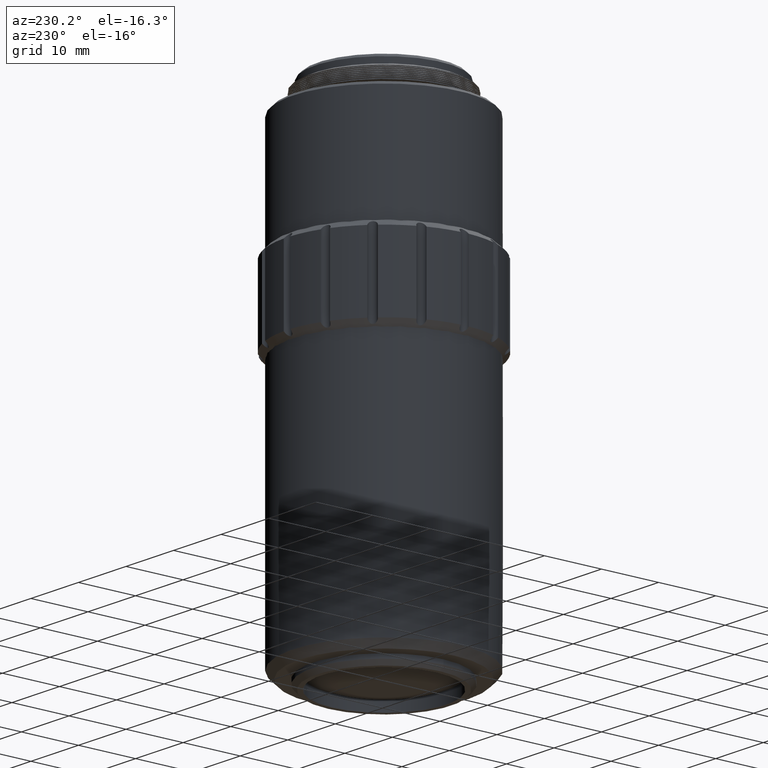
[diagram: clean part render]
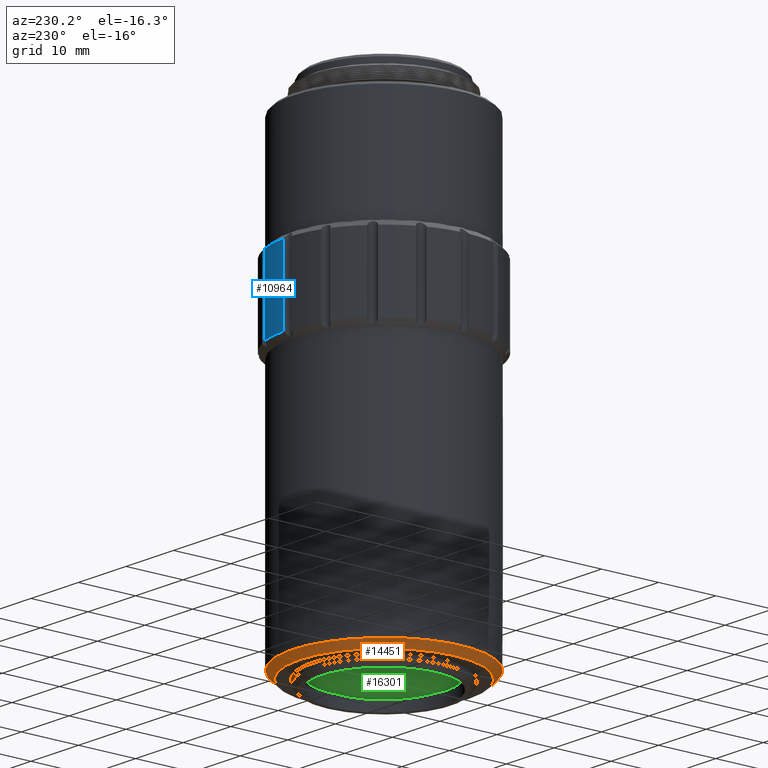
[diagram: same view with three faces highlighted in distinct colors, each labeled with its STEP entity id]
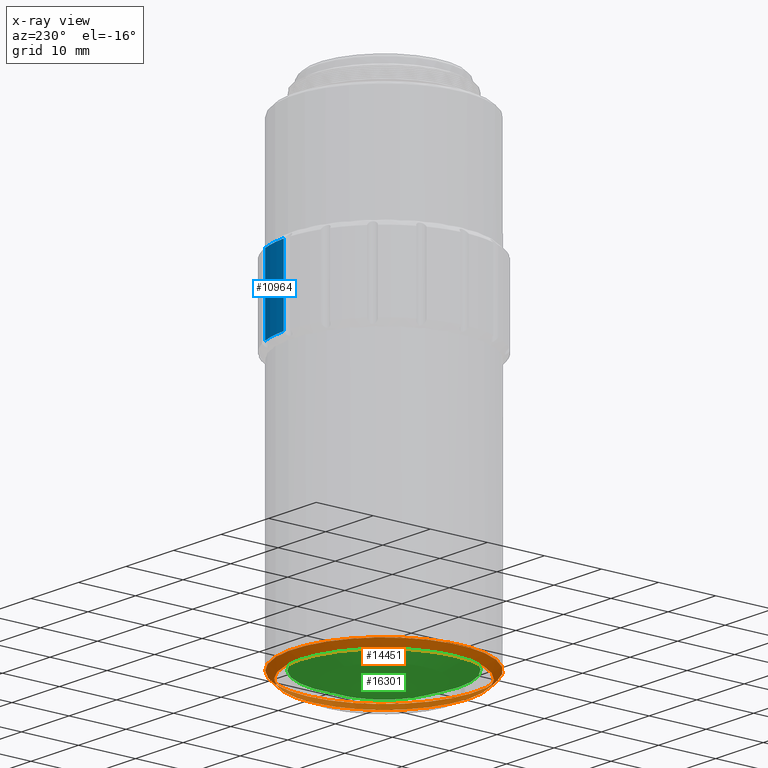
[diagram: x-ray of the same camera — body ghosted, the three highlighted faces saturated]
A machine part, auxiliary view with three faces highlighted in distinct colors.
The next image is the same camera in x-ray (body ghosted, the three faces saturated) — at least one of them is partly hidden behind the body in this view.
Their STEP definitions:

[orange] entity #14451 — the highlighted conical surface has half-angle 45 deg.
#322 = DIRECTION ( 'NONE',  ( -0.000000000000000000, -0.000000000000000000, -1.000000000000000000 ) ) ;
#342 = CARTESIAN_POINT ( 'NONE',  ( -106.6630341068842824, 22.01530283243863906, -51.10774392209297901 ) ) ;
#766 = DIRECTION ( 'NONE',  ( 1.000000000000000000, 0.000000000000000000, 0.000000000000000000 ) ) ;
#2072 = CIRCLE ( 'NONE', #14195, 14.79999999999989591 ) ;
#2402 = VERTEX_POINT ( 'NONE', #19298 ) ;
#3448 = FACE_OUTER_BOUND ( 'NONE', #30187, .T. ) ;
#3998 = CIRCLE ( 'NONE', #12575, 16.00000000000000000 ) ;
#4127 = DIRECTION ( 'NONE',  ( -0.000000000000000000, -0.000000000000000000, 1.000000000000000000 ) ) ;
#4784 = VERTEX_POINT ( 'NONE', #342 ) ;
#5173 = EDGE_CURVE ( 'NONE', #4784, #4784, #3998, .T. ) ;
#6025 = CONICAL_SURFACE ( 'NONE', #14099, 16.00000000000000000, 0.7853981633974583820 ) ;
#6353 = DIRECTION ( 'NONE',  ( 1.000000000000000000, 0.000000000000000000, 0.000000000000000000 ) ) ;
#6511 = CARTESIAN_POINT ( 'NONE',  ( -122.6630341068842824, 22.01530283243863906, -51.10774392209297901 ) ) ;
#7210 = EDGE_CURVE ( 'NONE', #2402, #2402, #2072, .T. ) ;
#12575 = AXIS2_PLACEMENT_3D ( 'NONE', #6511, #4127, #6353 ) ;
#13094 = DIRECTION ( 'NONE',  ( -0.000000000000000000, -0.000000000000000000, 1.000000000000000000 ) ) ;
#14099 = AXIS2_PLACEMENT_3D ( 'NONE', #17974, #13094, #766 ) ;
#14195 = AXIS2_PLACEMENT_3D ( 'NONE', #17530, #322, #16917 ) ;
#14451 = ADVANCED_FACE ( 'NONE', ( #25079, #3448 ), #6025, .T. ) ;
#16917 = DIRECTION ( 'NONE',  ( 1.000000000000000000, 0.000000000000000000, 0.000000000000000000 ) ) ;
#17530 = CARTESIAN_POINT ( 'NONE',  ( -122.6630341068842824, 22.01530283243863906, -52.30774392209306001 ) ) ;
#17974 = CARTESIAN_POINT ( 'NONE',  ( -122.6630341068842824, 22.01530283243863906, -51.10774392209297901 ) ) ;
#19298 = CARTESIAN_POINT ( 'NONE',  ( -107.8630341068843848, 22.01530283243863906, -52.30774392209306001 ) ) ;
#23833 = ORIENTED_EDGE ( 'NONE', *, *, #5173, .F. ) ;
#25079 = FACE_BOUND ( 'NONE', #31245, .T. ) ;
#30187 = EDGE_LOOP ( 'NONE', ( #23833 ) ) ;
#30969 = ORIENTED_EDGE ( 'NONE', *, *, #7210, .F. ) ;
#31245 = EDGE_LOOP ( 'NONE', ( #30969 ) ) ;

[blue] entity #10964 — the highlighted cylindrical surface (partial cylindrical patch) has radius 17 mm, axis along (-0, -0, -1).
#153 = CIRCLE ( 'NONE', #15288, 17.00000000000000000 ) ;
#1472 = VECTOR ( 'NONE', #22965, 1000.000000000000000 ) ;
#3044 = CARTESIAN_POINT ( 'NONE',  ( -122.6630341068842540, 22.01530283243863195, -8.750073880203553145 ) ) ;
#3490 = CIRCLE ( 'NONE', #25175, 16.99999999999998579 ) ;
#4993 = CARTESIAN_POINT ( 'NONE',  ( -121.9550761942215331, 39.00055512947261604, 6.500000000000000000 ) ) ;
#5520 = EDGE_CURVE ( 'NONE', #15359, #29565, #10666, .T. ) ;
#5587 = CARTESIAN_POINT ( 'NONE',  ( -122.6630341068842540, 22.01530283243863195, -6.499999999999999112 ) ) ;
#6074 = EDGE_LOOP ( 'NONE', ( #29759, #22909, #13908, #25174 ) ) ;
#8325 = DIRECTION ( 'NONE',  ( -0.000000000000000000, -0.000000000000000000, -1.000000000000000000 ) ) ;
#9096 = CARTESIAN_POINT ( 'NONE',  ( -121.9550761942215331, 39.00055512947261604, -6.499999999999999112 ) ) ;
#9699 = DIRECTION ( 'NONE',  ( 1.000000000000000000, 0.000000000000000000, 0.000000000000000000 ) ) ;
#9805 = EDGE_CURVE ( 'NONE', #29332, #23534, #19351, .T. ) ;
#10599 = VECTOR ( 'NONE', #16987, 1000.000000000000000 ) ;
#10666 = LINE ( 'NONE', #25181, #1472 ) ;
#10964 = ADVANCED_FACE ( 'NONE', ( #19779 ), #29434, .T. ) ;
#12952 = EDGE_CURVE ( 'NONE', #23534, #15359, #3490, .T. ) ;
#13908 = ORIENTED_EDGE ( 'NONE', *, *, #16845, .T. ) ;
#14747 = DIRECTION ( 'NONE',  ( 0.000000000000000000, 0.000000000000000000, 1.000000000000000000 ) ) ;
#15288 = AXIS2_PLACEMENT_3D ( 'NONE', #5587, #14747, #9699 ) ;
#15359 = VERTEX_POINT ( 'NONE', #28726 ) ;
#16845 = EDGE_CURVE ( 'NONE', #29565, #29332, #153, .T. ) ;
#16957 = DIRECTION ( 'NONE',  ( -1.000000000000000000, 0.000000000000000000, 0.000000000000000000 ) ) ;
#16987 = DIRECTION ( 'NONE',  ( -0.000000000000000000, -0.000000000000000000, 1.000000000000000000 ) ) ;
#17946 = DIRECTION ( 'NONE',  ( -1.000000000000000000, 0.000000000000000000, 0.000000000000000000 ) ) ;
#19351 = LINE ( 'NONE', #29005, #10599 ) ;
#19779 = FACE_OUTER_BOUND ( 'NONE', #6074, .T. ) ;
#22309 = DIRECTION ( 'NONE',  ( -0.000000000000000000, -0.000000000000000000, -1.000000000000000000 ) ) ;
#22693 = AXIS2_PLACEMENT_3D ( 'NONE', #3044, #22309, #16957 ) ;
#22909 = ORIENTED_EDGE ( 'NONE', *, *, #5520, .T. ) ;
#22965 = DIRECTION ( 'NONE',  ( 0.000000000000000000, 0.000000000000000000, -1.000000000000000000 ) ) ;
#23534 = VERTEX_POINT ( 'NONE', #4993 ) ;
#25174 = ORIENTED_EDGE ( 'NONE', *, *, #9805, .T. ) ;
#25175 = AXIS2_PLACEMENT_3D ( 'NONE', #29961, #8325, #17946 ) ;
#25181 = CARTESIAN_POINT ( 'NONE',  ( -116.8171272836564185, 37.97855354819631657, -5.050000000000006928 ) ) ;
#26146 = CARTESIAN_POINT ( 'NONE',  ( -116.8171272836564185, 37.97855354819631657, -6.499999999999999112 ) ) ;
#28726 = CARTESIAN_POINT ( 'NONE',  ( -116.8171272836564185, 37.97855354819631657, 6.500000000000000000 ) ) ;
#29005 = CARTESIAN_POINT ( 'NONE',  ( -121.9550761942215331, 39.00055512947261604, -5.050000000000006928 ) ) ;
#29332 = VERTEX_POINT ( 'NONE', #9096 ) ;
#29434 = CYLINDRICAL_SURFACE ( 'NONE', #22693, 16.99999999999998579 ) ;
#29565 = VERTEX_POINT ( 'NONE', #26146 ) ;
#29759 = ORIENTED_EDGE ( 'NONE', *, *, #12952, .T. ) ;
#29961 = CARTESIAN_POINT ( 'NONE',  ( -122.6630341068842540, 22.01530283243863195, 6.500000000000000000 ) ) ;

[green] entity #16301 — the highlighted spherical surface has radius 31.2095 mm.
#558 = AXIS2_PLACEMENT_3D ( 'NONE', #1090, #20347, #15312 ) ;
#1090 = CARTESIAN_POINT ( 'NONE',  ( -122.6630341068842540, 22.01530283243863195, -51.01891477214511639 ) ) ;
#2061 = FACE_OUTER_BOUND ( 'NONE', #3015, .T. ) ;
#3015 = EDGE_LOOP ( 'NONE', ( #13911 ) ) ;
#6975 = CARTESIAN_POINT ( 'NONE',  ( -122.6630341068842540, 22.01530283243863195, -22.65635957015096125 ) ) ;
#13414 = CARTESIAN_POINT ( 'NONE',  ( -122.6630341068842540, 35.03833184500979314, -51.01891477214511639 ) ) ;
#13911 = ORIENTED_EDGE ( 'NONE', *, *, #28741, .F. ) ;
#14232 = DIRECTION ( 'NONE',  ( 0.000000000000000000, 0.000000000000000000, -1.000000000000000000 ) ) ;
#15312 = DIRECTION ( 'NONE',  ( 0.000000000000000000, 1.000000000000000000, 0.000000000000000000 ) ) ;
#16301 = ADVANCED_FACE ( 'NONE', ( #2061 ), #21322, .T. ) ;
#20347 = DIRECTION ( 'NONE',  ( -0.000000000000000000, -1.313240075463129887E-16, 1.000000000000000000 ) ) ;
#21322 = SPHERICAL_SURFACE ( 'NONE', #25885, 31.20951493132239918 ) ;
#25269 = CIRCLE ( 'NONE', #558, 13.02302901257115764 ) ;
#25885 = AXIS2_PLACEMENT_3D ( 'NONE', #6975, #14232, #31133 ) ;
#27942 = VERTEX_POINT ( 'NONE', #13414 ) ;
#28741 = EDGE_CURVE ( 'NONE', #27942, #27942, #25269, .T. ) ;
#31133 = DIRECTION ( 'NONE',  ( 0.000000000000000000, -1.000000000000000000, 0.000000000000000000 ) ) ;